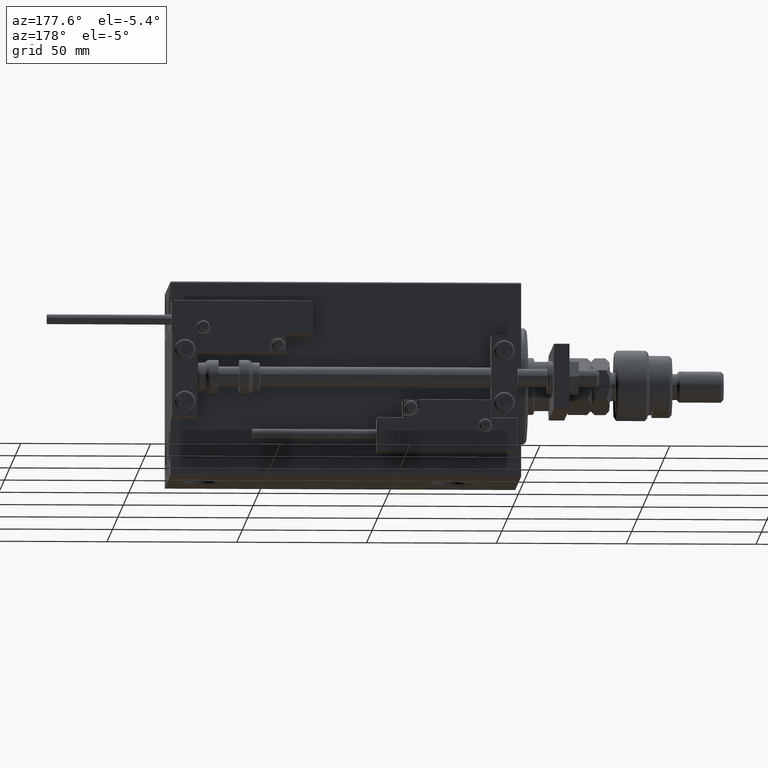
[diagram: clean part render]
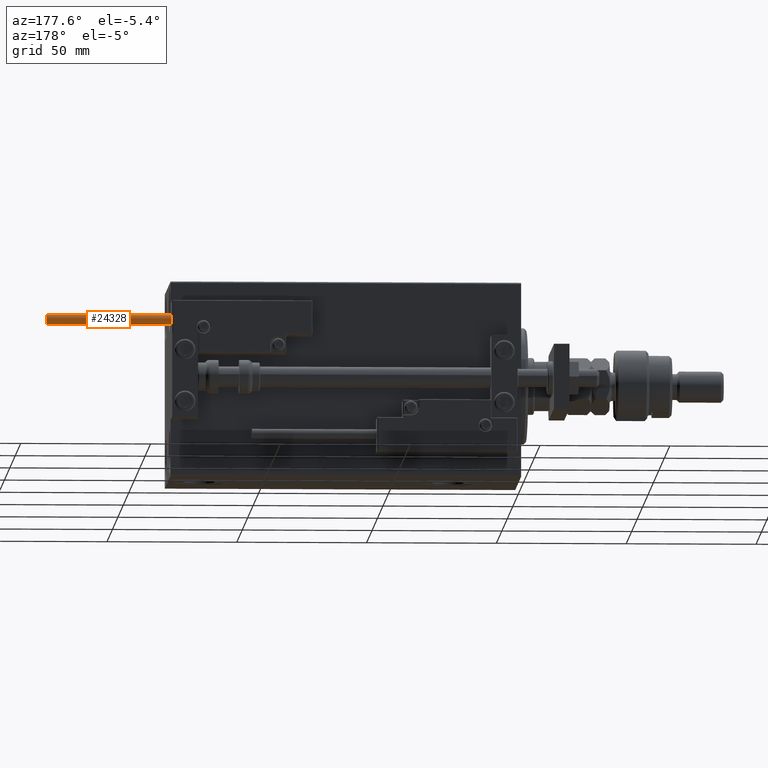
[diagram: same view with one face highlighted and labeled with its STEP entity id]
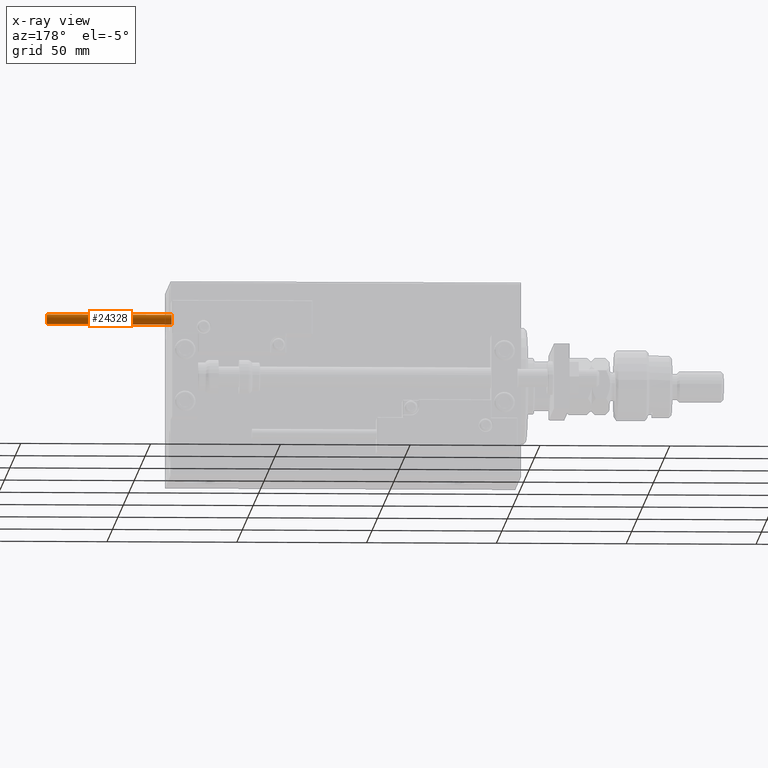
[diagram: x-ray of the same camera — body ghosted, the highlighted face saturated]
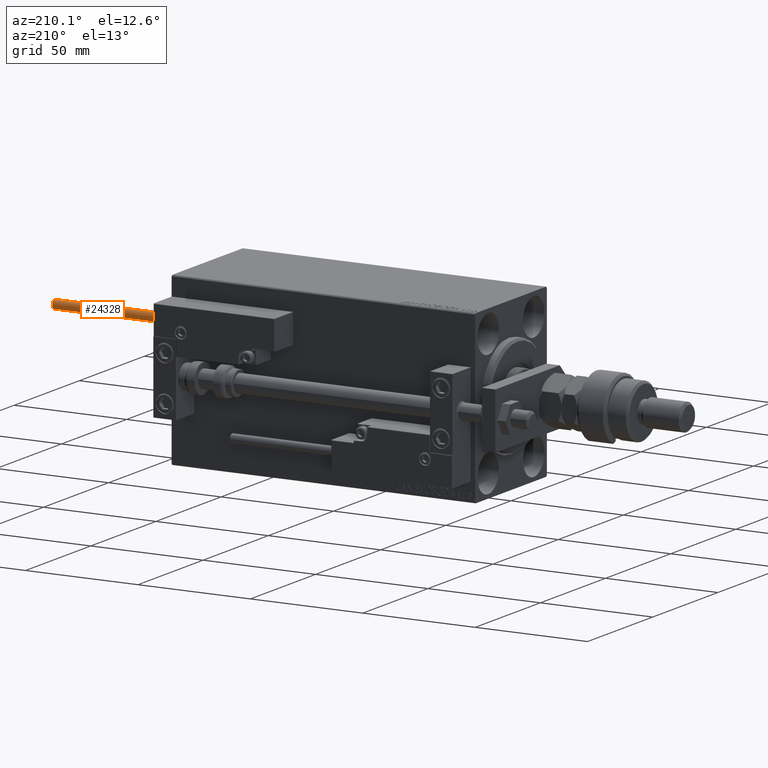
[diagram: same view with one face highlighted and labeled with its STEP entity id]
A machine part, auxiliary view. The second image highlights one B-rep face of the part: STEP entity #24328.
The next image is the same camera in x-ray: the body ghosted, the highlighted face saturated — about 0% of this face is hidden behind the body in this view.
A second angle (auxiliary view) of the same face is appended — the face is thin or edge-on in the first view.
In plain terms, the highlighted cylindrical surface (edge-blend (fillet) strip) has radius 1.9 mm, axis along (-1, -0, 0).
Its self-contained STEP definition (entity closure, byte-faithful):
#2554 = CARTESIAN_POINT ( 'NONE',  ( 1.899999999999999467, 2.326828918379970872E-16, 48.00000000000000000 ) ) ;
#4583 = DIRECTION ( 'NONE',  ( 0.000000000000000000, 0.000000000000000000, 1.000000000000000000 ) ) ;
#5033 = DIRECTION ( 'NONE',  ( -0.000000000000000000, -0.000000000000000000, -1.000000000000000000 ) ) ;
#7918 = DIRECTION ( 'NONE',  ( 1.000000000000000000, 0.000000000000000000, 0.000000000000000000 ) ) ;
#8198 = VERTEX_POINT ( 'NONE', #51865 ) ;
#9605 = CARTESIAN_POINT ( 'NONE',  ( 0.000000000000000000, 0.000000000000000000, 48.00000000000000000 ) ) ;
#11678 = CIRCLE ( 'NONE', #42571, 1.899999999999999467 ) ;
#12425 = CARTESIAN_POINT ( 'NONE',  ( -1.899999999999999467, 0.000000000000000000, 48.00000000000000000 ) ) ;
#12634 = DIRECTION ( 'NONE',  ( 1.000000000000000000, 0.000000000000000000, 0.000000000000000000 ) ) ;
#12698 = LINE ( 'NONE', #49519, #31142 ) ;
#12874 = VERTEX_POINT ( 'NONE', #16679 ) ;
#14033 = VECTOR ( 'NONE', #51728, 1000.000000000000000 ) ;
#16679 = CARTESIAN_POINT ( 'NONE',  ( 1.899999999999999467, 2.326828918379970872E-16, 48.00000000000000000 ) ) ;
#17621 = AXIS2_PLACEMENT_3D ( 'NONE', #9605, #5033, #50179 ) ;
#18218 = AXIS2_PLACEMENT_3D ( 'NONE', #39370, #51739, #7918 ) ;
#19519 = EDGE_CURVE ( 'NONE', #24103, #31774, #12698, .T. ) ;
#19602 = ORIENTED_EDGE ( 'NONE', *, *, #44617, .T. ) ;
#19905 = EDGE_LOOP ( 'NONE', ( #20127, #50631, #19602, #24949 ) ) ;
#20127 = ORIENTED_EDGE ( 'NONE', *, *, #26324, .F. ) ;
#20131 = EDGE_CURVE ( 'NONE', #12874, #8198, #47429, .T. ) ;
#22209 = FACE_OUTER_BOUND ( 'NONE', #19905, .T. ) ;
#24103 = VERTEX_POINT ( 'NONE', #12425 ) ;
#24328 = ADVANCED_FACE ( 'NONE', ( #22209 ), #46152, .T. ) ;
#24949 = ORIENTED_EDGE ( 'NONE', *, *, #19519, .F. ) ;
#26324 = EDGE_CURVE ( 'NONE', #12874, #24103, #11678, .T. ) ;
#26362 = CARTESIAN_POINT ( 'NONE',  ( -1.899999999999999467, 0.000000000000000000, 0.000000000000000000 ) ) ;
#31109 = CIRCLE ( 'NONE', #18218, 1.899999999999999467 ) ;
#31142 = VECTOR ( 'NONE', #53040, 1000.000000000000000 ) ;
#31774 = VERTEX_POINT ( 'NONE', #26362 ) ;
#37094 = CARTESIAN_POINT ( 'NONE',  ( 0.000000000000000000, 0.000000000000000000, 48.00000000000000000 ) ) ;
#39370 = CARTESIAN_POINT ( 'NONE',  ( 0.000000000000000000, 0.000000000000000000, 0.000000000000000000 ) ) ;
#42571 = AXIS2_PLACEMENT_3D ( 'NONE', #37094, #4583, #12634 ) ;
#44617 = EDGE_CURVE ( 'NONE', #8198, #31774, #31109, .T. ) ;
#46152 = CYLINDRICAL_SURFACE ( 'NONE', #17621, 1.899999999999999467 ) ;
#47429 = LINE ( 'NONE', #2554, #14033 ) ;
#49519 = CARTESIAN_POINT ( 'NONE',  ( -1.899999999999999467, 0.000000000000000000, 48.00000000000000000 ) ) ;
#50179 = DIRECTION ( 'NONE',  ( -1.000000000000000000, 0.000000000000000000, 0.000000000000000000 ) ) ;
#50631 = ORIENTED_EDGE ( 'NONE', *, *, #20131, .T. ) ;
#51728 = DIRECTION ( 'NONE',  ( -0.000000000000000000, -0.000000000000000000, -1.000000000000000000 ) ) ;
#51739 = DIRECTION ( 'NONE',  ( 0.000000000000000000, 0.000000000000000000, 1.000000000000000000 ) ) ;
#51865 = CARTESIAN_POINT ( 'NONE',  ( 1.899999999999999467, 2.326828918379970872E-16, 0.000000000000000000 ) ) ;
#53040 = DIRECTION ( 'NONE',  ( -0.000000000000000000, -0.000000000000000000, -1.000000000000000000 ) ) ;